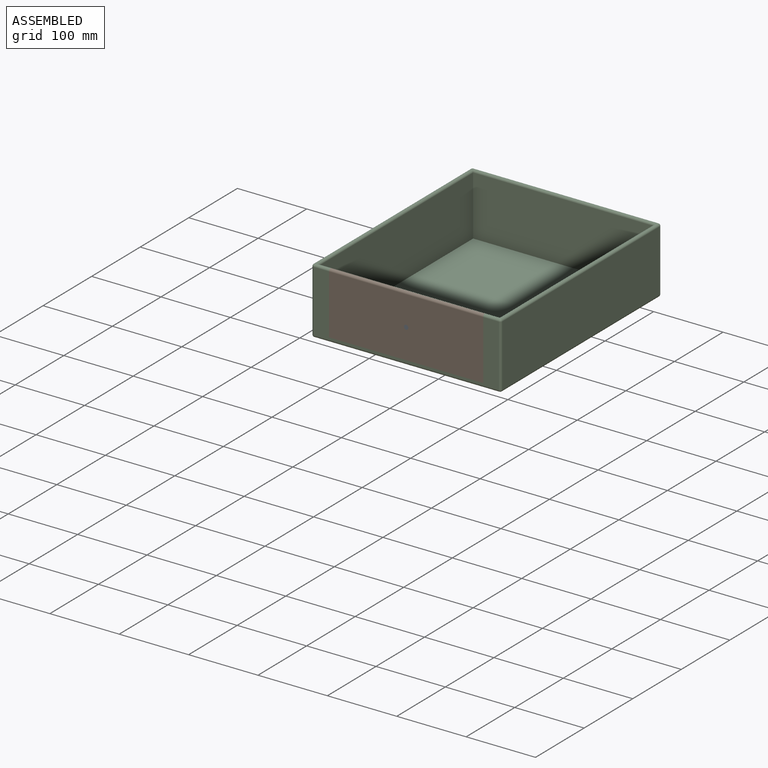
[diagram: assembled view]
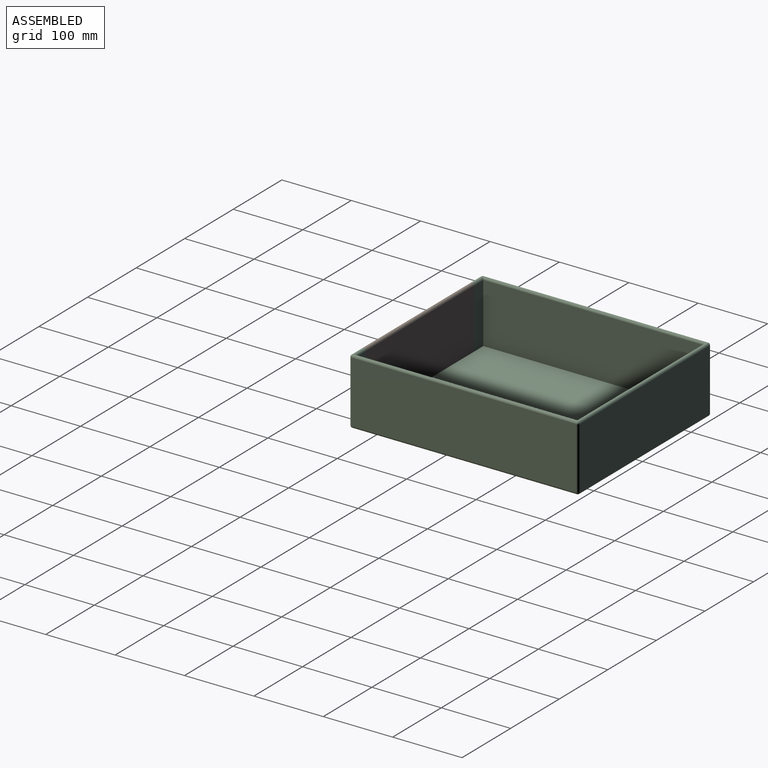
[diagram: assembled view, second angle]
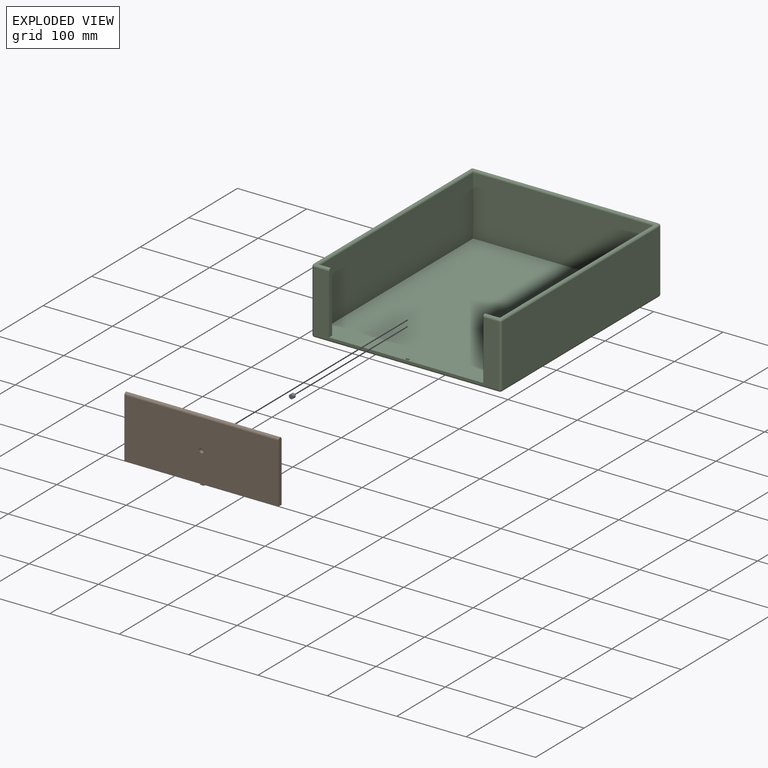
[diagram: exploded view]
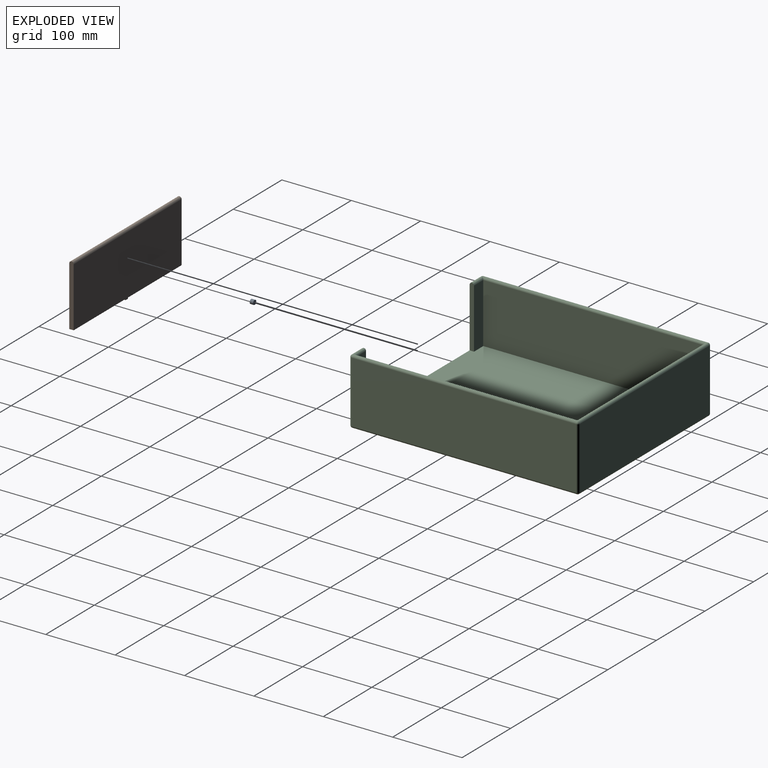
[diagram: exploded view, second angle]
ASSEMBLY  parts=3 mates=4
PART A: 3 faces, bbox 6.4x5.1x6.4 mm
  f0: cylinder r=3.17mm len=6.35mm, axis (0,1,0), area 101.3mm2, adj f1,f2
  f1: plane 6.35x6.35mm, normal (0,-1,0), area 31.7mm2, adj f0
  f2: plane 6.35x6.35mm, normal (0,1,0), area 31.7mm2, adj f0
PART B: 13 faces, bbox 222.3x6.4x91.4 mm
  f0: plane 222.25x85.73mm, normal (0,1,0), area 19052.4mm2, adj f1,f3,f4,f10
  f1: plane 88.9x6.35mm, normal (-1,0,0), area 560.2mm2, adj f0,f2,f4,f10
  f2: plane 222.25x85.73mm, normal (0,-1,0), area 19020.7mm2, adj f1,f3,f4,f10,f11
  f3: plane 88.9x6.35mm, normal (1,0,0), area 560.2mm2, adj f0,f2,f4,f10
  f4: plane 222.25x6.35mm, normal (0,0,-1), area 1391.9mm2, adj f0,f1,f2,f3,f5,f6,f7,f8
  f5: plane 5.08x2.54mm, normal (0,-1,0), area 12.9mm2, adj f4,f6,f8,f9
  f6: plane 3.81x2.54mm, normal (-1,0,0), area 9.7mm2, adj f4,f5,f7,f9
  f7: plane 5.08x2.54mm, normal (0,1,0), area 12.9mm2, adj f4,f6,f8,f9
  f8: plane 3.81x2.54mm, normal (1,0,0), area 9.7mm2, adj f4,f5,f7,f9
  f9: plane 5.08x3.81mm, normal (0,0,-1), area 19.4mm2, adj f5,f6,f7,f8
  f10: cylinder r=3.17mm len=222.25mm, axis (1,0,0), area 2216.8mm2, adj f0,f1,f2,f3
  f11: cylinder r=3.17mm len=6.35mm, axis (0,-1,0), area 101.3mm2, adj f2,f12
  f12: plane 6.35x6.35mm, normal (0,-1,0), area 31.7mm2, adj f11
PART C: 39 faces, bbox 273.1x330.2x95.3 mm
  f0: plane 323.85x260.35mm, normal (0,0,1), area 84053.1mm2, adj f1,f4,f7,f8,f9,f10,f11,f12
  f1: plane 85.73x19.05mm, normal (0,1,0), area 1633.1mm2, adj f0,f9,f11,f13
  f2: plane 266.7x88.9mm, normal (0,1,0), area 23709.6mm2, adj f16,f17,f24,f25
  f3: plane 323.85x88.9mm, normal (-1,0,0), area 28790.3mm2, adj f16,f18,f19,f20
  f4: plane 266.7x88.9mm, normal (0,-1,0), area 4657.2mm2, adj f0,f11,f12,f13,f19,f27,f31,f32
  f5: plane 323.85x88.9mm, normal (1,0,0), area 28790.3mm2, adj f25,f26,f30,f31
  f6: plane 323.85x266.7mm, normal (0,0,-1), area 86370.8mm2, adj f17,f18,f26,f27
  f7: plane 317.5x85.73mm, normal (-1,0,0), area 27217.7mm2, adj f0,f8,f10,f30
  f8: plane 260.35x85.73mm, normal (0,-1,0), area 22318.5mm2, adj f0,f7,f9,f24
  f9: plane 317.5x85.73mm, normal (1,0,0), area 27217.7mm2, adj f0,f1,f8,f20
  f10: plane 85.73x19.05mm, normal (0,1,0), area 1633.1mm2, adj f0,f7,f12,f32
  f11: plane 88.9x6.35mm, normal (1,0,0), area 560.2mm2, adj f0,f1,f4,f13
  f12: plane 88.9x6.35mm, normal (-1,0,0), area 560.2mm2, adj f0,f4,f10,f32
  f13: cylinder r=3.17mm len=22.23mm, axis (-1,0,0), area 211.6mm2, adj f1,f4,f11,f15,f20
  f14: sphere r=3.17mm, area 15.8mm2, adj f16,f17,f18
  f15: sphere r=3.17mm, area 15.8mm2, adj f13,f19,f20
  f16: cylinder r=3.17mm len=88.9mm, axis (0,0,1), area 443.4mm2, adj f2,f3,f14,f21
  f17: cylinder r=3.17mm len=266.7mm, axis (-1,0,0), area 1330.1mm2, adj f2,f6,f14,f22
  f18: cylinder r=3.17mm len=323.85mm, axis (0,-1,0), area 1615.1mm2, adj f3,f6,f14,f23
  f19: cylinder r=3.17mm len=88.9mm, axis (0,0,-1), area 443.4mm2, adj f3,f4,f15,f23
  f20: cylinder r=3.17mm len=323.85mm, axis (0,1,0), area 3210.1mm2, adj f3,f9,f13,f15,f21,f24
  f21: sphere r=3.17mm, area 15.8mm2, adj f16,f20,f24
  f22: sphere r=3.17mm, area 15.8mm2, adj f17,f25,f26
  f23: sphere r=3.17mm, area 15.8mm2, adj f18,f19,f27
  f24: cylinder r=3.17mm len=266.7mm, axis (1,0,0), area 2640.1mm2, adj f2,f8,f20,f21,f28,f30
  f25: cylinder r=3.17mm len=88.9mm, axis (0,0,-1), area 443.4mm2, adj f2,f5,f22,f28
  f26: cylinder r=3.17mm len=323.85mm, axis (0,1,0), area 1615.1mm2, adj f5,f6,f22,f29
  f27: cylinder r=3.17mm len=266.7mm, axis (1,0,0), area 1330.1mm2, adj f4,f6,f23,f29
  f28: sphere r=3.17mm, area 15.8mm2, adj f24,f25,f30
  f29: sphere r=3.17mm, area 15.8mm2, adj f26,f27,f31
  f30: cylinder r=3.17mm len=323.85mm, axis (0,-1,0), area 3210.1mm2, adj f5,f7,f24,f28,f32,f33
  f31: cylinder r=3.17mm len=88.9mm, axis (0,0,1), area 443.4mm2, adj f4,f5,f29,f33
  f32: cylinder r=3.17mm len=22.23mm, axis (-1,0,0), area 211.6mm2, adj f4,f10,f12,f30,f33
  f33: sphere r=3.17mm, area 15.8mm2, adj f30,f31,f32
  f34: plane 5.08x2.54mm, normal (0,-1,0), area 12.9mm2, adj f0,f35,f37,f38
  f35: plane 3.81x2.54mm, normal (1,0,0), area 9.7mm2, adj f0,f34,f36,f38
  f36: plane 5.08x2.54mm, normal (0,1,0), area 12.9mm2, adj f0,f35,f37,f38
  f37: plane 3.81x2.54mm, normal (-1,0,0), area 9.7mm2, adj f0,f34,f36,f38
  f38: plane 5.08x3.81mm, normal (0,0,1), area 19.4mm2, adj f34,f35,f36,f37
PLACE A t=(-110.53,-189.26,130.65)mm
PLACE B t=(26.21,-97.14,87.79)mm
PLACE C t=(131.08,-194.34,81.44)mm
MATE pin_slot B.f9 <-> C.f38  axis (0,0,-1) through (-110.53,-191.17,85.25)mm
MATE planar A.f0 <-> B.f11  axis (0,-1,0) through (-110.53,-194.34,130.65)mm
MATE slider A.f0 <-> B.f11  axis (0,-1,0) through (-110.53,-194.34,130.65)mm
MATE planar C.f11 <-> B.f1  axis (1,0,0) through (-221.65,-191.17,131.9)mm
